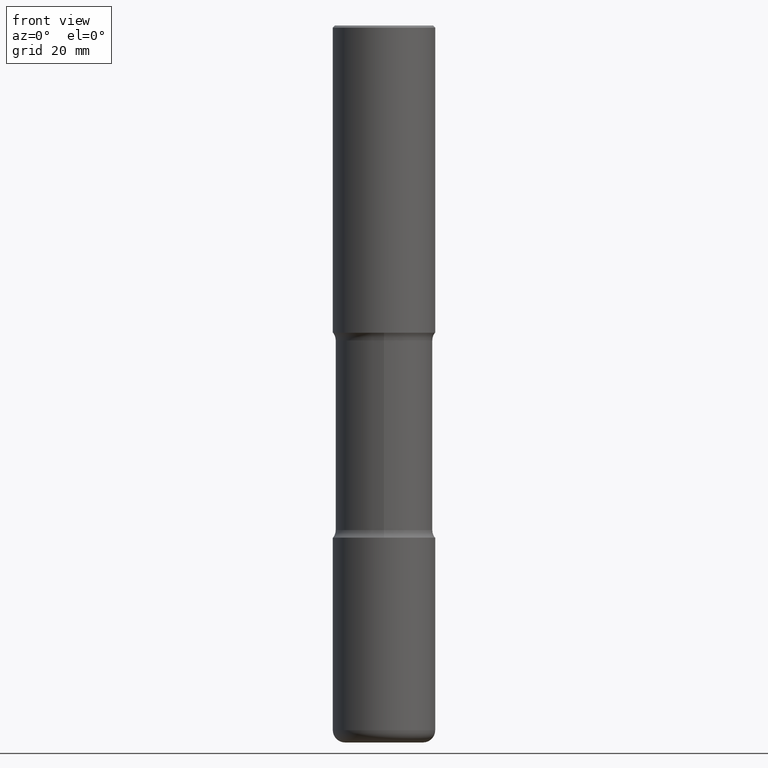
[diagram: clean part render]
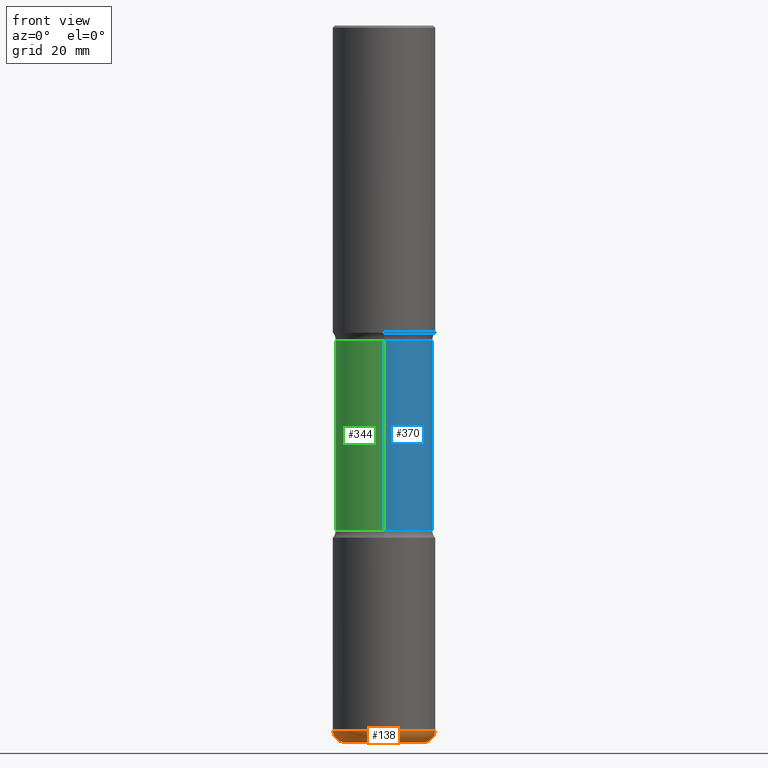
[diagram: same view with three faces highlighted in distinct colors, each labeled with its STEP entity id]
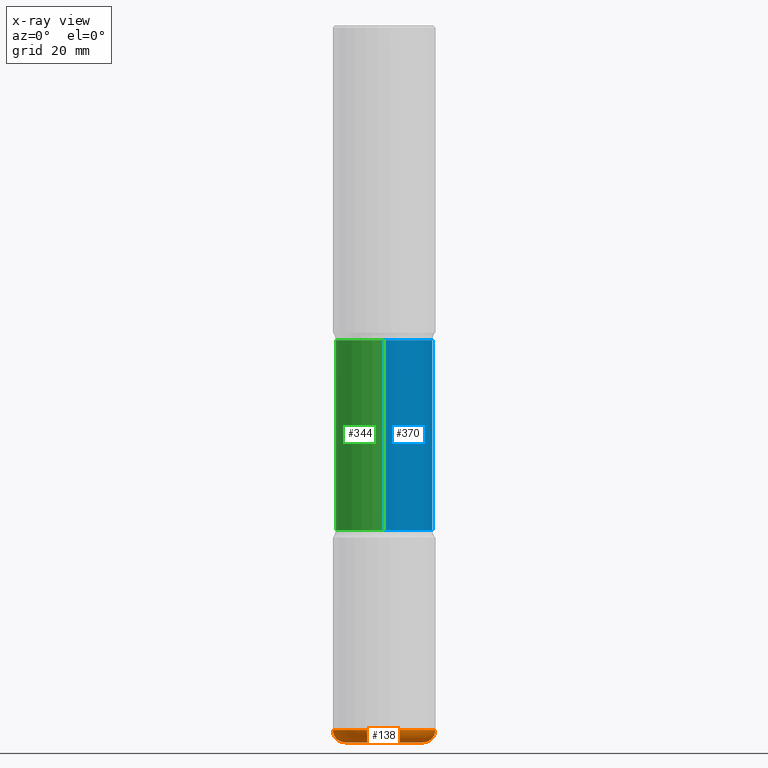
[diagram: x-ray of the same camera — body ghosted, the three highlighted faces saturated]
A machine part, front view with three faces highlighted in distinct colors.
The next image is the same camera in x-ray (body ghosted, the three faces saturated) — at least one of them is partly hidden behind the body in this view.
Their STEP definitions:

[orange] entity #138 — the highlighted toroidal blend (fillet) surface has major radius 9.652 mm and minor (blend) radius 3.048 mm.
#10 = VERTEX_POINT ( 'NONE', #276 ) ;
#18 = EDGE_CURVE ( 'NONE', #309, #529, #423, .T. ) ;
#44 = DIRECTION ( 'NONE',  ( -2.445468806185136597E-29, 3.491481338843145583E-15, 1.000000000000000000 ) ) ;
#54 = FACE_OUTER_BOUND ( 'NONE', #251, .T. ) ;
#63 = CIRCLE ( 'NONE', #229, 0.1199999999999999539 ) ;
#81 = ORIENTED_EDGE ( 'NONE', *, *, #355, .T. ) ;
#84 = DIRECTION ( 'NONE',  ( -1.000000000000000000, 7.105427357600993970E-15, 0.000000000000000000 ) ) ;
#108 = DIRECTION ( 'NONE',  ( 1.000000000000000000, -6.982962677686263555E-15, 0.000000000000000000 ) ) ;
#112 = CARTESIAN_POINT ( 'NONE',  ( -0.3800000000000004485, -2.132132921535246210E-14, -6.880000000000000782 ) ) ;
#128 = DIRECTION ( 'NONE',  ( 1.000000000000000000, -6.982962677686264344E-15, 0.000000000000000000 ) ) ;
#138 = ADVANCED_FACE ( 'NONE', ( #54 ), #385, .T. ) ;
#139 = DIRECTION ( 'NONE',  ( -2.445468806185136597E-29, 3.491481338843145583E-15, 1.000000000000000000 ) ) ;
#146 = CIRCLE ( 'NONE', #487, 0.3800000000000004485 ) ;
#159 = CARTESIAN_POINT ( 'NONE',  ( 1.711828164329595618E-28, -2.444036937190202184E-14, -7.000000000000000888 ) ) ;
#164 = AXIS2_PLACEMENT_3D ( 'NONE', #476, #44, #128 ) ;
#200 = CARTESIAN_POINT ( 'NONE',  ( 0.5000000000000004441, -2.751287295008398172E-14, -6.880000000000000782 ) ) ;
#221 = DIRECTION ( 'NONE',  ( 7.105427357601001859E-15, 1.000000000000000000, -3.491481338843145583E-15 ) ) ;
#229 = AXIS2_PLACEMENT_3D ( 'NONE', #266, #261, #432 ) ;
#235 = CARTESIAN_POINT ( 'NONE',  ( 1.682482538655374212E-28, -2.402139161124084521E-14, -6.880000000000000782 ) ) ;
#239 = DIRECTION ( 'NONE',  ( 1.000000000000000000, -6.982962677686265133E-15, 4.883557194083111780E-29 ) ) ;
#251 = EDGE_LOOP ( 'NONE', ( #413, #400, #81, #534 ) ) ;
#261 = DIRECTION ( 'NONE',  ( -6.982962677686266711E-15, -1.000000000000000000, 3.491481338843145583E-15 ) ) ;
#266 = CARTESIAN_POINT ( 'NONE',  ( 0.3800000000000004485, -2.667491742876162845E-14, -6.880000000000000782 ) ) ;
#276 = CARTESIAN_POINT ( 'NONE',  ( 0.3800000000000004485, -2.709389518942280508E-14, -7.000000000000000888 ) ) ;
#309 = VERTEX_POINT ( 'NONE', #490 ) ;
#340 = EDGE_CURVE ( 'NONE', #537, #309, #428, .T. ) ;
#355 = EDGE_CURVE ( 'NONE', #10, #529, #63, .T. ) ;
#378 = CARTESIAN_POINT ( 'NONE',  ( -0.3800000000000004485, -2.110449245422699151E-14, -7.000000000000000888 ) ) ;
#385 = TOROIDAL_SURFACE ( 'NONE', #407, 0.3800000000000004485, 0.1199999999999999123 ) ;
#398 = AXIS2_PLACEMENT_3D ( 'NONE', #112, #221, #84 ) ;
#400 = ORIENTED_EDGE ( 'NONE', *, *, #515, .T. ) ;
#407 = AXIS2_PLACEMENT_3D ( 'NONE', #235, #139, #239 ) ;
#413 = ORIENTED_EDGE ( 'NONE', *, *, #340, .F. ) ;
#423 = CIRCLE ( 'NONE', #164, 0.5000000000000004441 ) ;
#428 = CIRCLE ( 'NONE', #398, 0.1199999999999999539 ) ;
#432 = DIRECTION ( 'NONE',  ( 1.000000000000000000, -6.982962677686270655E-15, 0.000000000000000000 ) ) ;
#476 = CARTESIAN_POINT ( 'NONE',  ( 1.682482538655374212E-28, -2.402139161124084521E-14, -6.880000000000000782 ) ) ;
#487 = AXIS2_PLACEMENT_3D ( 'NONE', #159, #507, #108 ) ;
#490 = CARTESIAN_POINT ( 'NONE',  ( -0.5000000000000004441, -2.046867793244034428E-14, -6.880000000000000782 ) ) ;
#507 = DIRECTION ( 'NONE',  ( -2.445468806185136597E-29, 3.491481338843145583E-15, 1.000000000000000000 ) ) ;
#515 = EDGE_CURVE ( 'NONE', #537, #10, #146, .T. ) ;
#529 = VERTEX_POINT ( 'NONE', #200 ) ;
#534 = ORIENTED_EDGE ( 'NONE', *, *, #18, .F. ) ;
#537 = VERTEX_POINT ( 'NONE', #378 ) ;

[blue] entity #370 — the highlighted cylindrical surface (partial cylindrical patch) has radius 12.065 mm, axis along (0, -0, -1).
#1 = CARTESIAN_POINT ( 'NONE',  ( 1.204017111178237438E-28, -1.720093407839433761E-14, -4.924999999999998046 ) ) ;
#2 = VERTEX_POINT ( 'NONE', #493 ) ;
#6 = VERTEX_POINT ( 'NONE', #367 ) ;
#11 = DIRECTION ( 'NONE',  ( 6.982962677686265133E-15, 1.000000000000000000, -3.450755360418015555E-15 ) ) ;
#23 = EDGE_CURVE ( 'NONE', #6, #129, #75, .T. ) ;
#25 = FACE_OUTER_BOUND ( 'NONE', #552, .T. ) ;
#36 = DIRECTION ( 'NONE',  ( 6.982962677686265922E-15, 1.000000000000000000, -2.300503573612011028E-15 ) ) ;
#46 = LINE ( 'NONE', #494, #69 ) ;
#55 = ORIENTED_EDGE ( 'NONE', *, *, #332, .T. ) ;
#60 = CARTESIAN_POINT ( 'NONE',  ( -3.344492773913500625E-15, -0.4750000000000171863, -4.924999999999997158 ) ) ;
#69 = VECTOR ( 'NONE', #102, 39.37007874015748143 ) ;
#75 = CIRCLE ( 'NONE', #521, 0.4749999999999999778 ) ;
#102 = DIRECTION ( 'NONE',  ( 2.495638921910708014E-29, -3.419634877618474112E-15, -1.000000000000000000 ) ) ;
#115 = EDGE_CURVE ( 'NONE', #369, #2, #396, .T. ) ;
#127 = DIRECTION ( 'NONE',  ( 2.495638921910708014E-29, -3.419634877618474112E-15, -1.000000000000000000 ) ) ;
#129 = VERTEX_POINT ( 'NONE', #60 ) ;
#167 = DIRECTION ( 'NONE',  ( 6.982962677686265133E-15, 1.000000000000000000, -2.300503573612011422E-15 ) ) ;
#180 = CARTESIAN_POINT ( 'NONE',  ( 3.316907271901051235E-15, 0.4749999999999892641, -3.075000000000001510 ) ) ;
#183 = CARTESIAN_POINT ( 'NONE',  ( -3.258736548941304889E-15, -0.4750000000000243472, -6.999999999999997335 ) ) ;
#185 = ORIENTED_EDGE ( 'NONE', *, *, #207, .F. ) ;
#186 = AXIS2_PLACEMENT_3D ( 'NONE', #360, #258, #36 ) ;
#207 = EDGE_CURVE ( 'NONE', #369, #6, #46, .T. ) ;
#215 = DIRECTION ( 'NONE',  ( 2.495638921910708014E-29, -3.419634877618474112E-15, -1.000000000000000000 ) ) ;
#225 = ORIENTED_EDGE ( 'NONE', *, *, #115, .T. ) ;
#247 = VECTOR ( 'NONE', #127, 39.37007874015748143 ) ;
#258 = DIRECTION ( 'NONE',  ( 2.495638921910708014E-29, -3.419634877618474112E-15, -1.000000000000000000 ) ) ;
#332 = EDGE_CURVE ( 'NONE', #2, #129, #446, .T. ) ;
#360 = CARTESIAN_POINT ( 'NONE',  ( 1.721862187474709565E-28, -2.429667644945267101E-14, -6.999999999999998224 ) ) ;
#367 = CARTESIAN_POINT ( 'NONE',  ( 3.316907271901096594E-15, 0.4749999999999827693, -4.924999999999999822 ) ) ;
#369 = VERTEX_POINT ( 'NONE', #180 ) ;
#370 = ADVANCED_FACE ( 'NONE', ( #25 ), #450, .T. ) ;
#396 = CIRCLE ( 'NONE', #497, 0.4750000000000001443 ) ;
#446 = LINE ( 'NONE', #183, #247 ) ;
#450 = CYLINDRICAL_SURFACE ( 'NONE', #186, 0.4750000000000000333 ) ;
#464 = CARTESIAN_POINT ( 'NONE',  ( 7.423239106247569958E-29, -1.087460955480016368E-14, -3.074999999999999734 ) ) ;
#477 = ORIENTED_EDGE ( 'NONE', *, *, #23, .F. ) ;
#493 = CARTESIAN_POINT ( 'NONE',  ( -3.344492773913550718E-15, -0.4750000000000109690, -3.074999999999998401 ) ) ;
#494 = CARTESIAN_POINT ( 'NONE',  ( 3.316907271901148659E-15, 0.4749999999999757194, -7.000000000000000000 ) ) ;
#497 = AXIS2_PLACEMENT_3D ( 'NONE', #464, #541, #11 ) ;
#521 = AXIS2_PLACEMENT_3D ( 'NONE', #1, #215, #167 ) ;
#541 = DIRECTION ( 'NONE',  ( 2.495638921910708014E-29, -3.419634877618474112E-15, -1.000000000000000000 ) ) ;
#552 = EDGE_LOOP ( 'NONE', ( #225, #55, #477, #185 ) ) ;

[green] entity #344 — the highlighted cylindrical surface (partial cylindrical patch) has radius 12.065 mm, axis along (0, -0, -1).
#2 = VERTEX_POINT ( 'NONE', #493 ) ;
#6 = VERTEX_POINT ( 'NONE', #367 ) ;
#22 = AXIS2_PLACEMENT_3D ( 'NONE', #298, #475, #70 ) ;
#42 = CYLINDRICAL_SURFACE ( 'NONE', #22, 0.4750000000000000333 ) ;
#46 = LINE ( 'NONE', #494, #69 ) ;
#53 = AXIS2_PLACEMENT_3D ( 'NONE', #226, #281, #406 ) ;
#60 = CARTESIAN_POINT ( 'NONE',  ( -3.344492773913500625E-15, -0.4750000000000171863, -4.924999999999997158 ) ) ;
#69 = VECTOR ( 'NONE', #102, 39.37007874015748143 ) ;
#70 = DIRECTION ( 'NONE',  ( 6.982962677686265922E-15, 1.000000000000000000, -2.300503573612011028E-15 ) ) ;
#89 = DIRECTION ( 'NONE',  ( 2.495638921910708014E-29, -3.419634877618474112E-15, -1.000000000000000000 ) ) ;
#102 = DIRECTION ( 'NONE',  ( 2.495638921910708014E-29, -3.419634877618474112E-15, -1.000000000000000000 ) ) ;
#127 = DIRECTION ( 'NONE',  ( 2.495638921910708014E-29, -3.419634877618474112E-15, -1.000000000000000000 ) ) ;
#129 = VERTEX_POINT ( 'NONE', #60 ) ;
#180 = CARTESIAN_POINT ( 'NONE',  ( 3.316907271901051235E-15, 0.4749999999999892641, -3.075000000000001510 ) ) ;
#183 = CARTESIAN_POINT ( 'NONE',  ( -3.258736548941304889E-15, -0.4750000000000243472, -6.999999999999997335 ) ) ;
#204 = DIRECTION ( 'NONE',  ( 6.982962677686265133E-15, 1.000000000000000000, -2.300503573612011422E-15 ) ) ;
#207 = EDGE_CURVE ( 'NONE', #369, #6, #46, .T. ) ;
#226 = CARTESIAN_POINT ( 'NONE',  ( 7.423239106247569958E-29, -1.087460955480016368E-14, -3.074999999999999734 ) ) ;
#236 = ORIENTED_EDGE ( 'NONE', *, *, #207, .T. ) ;
#247 = VECTOR ( 'NONE', #127, 39.37007874015748143 ) ;
#249 = EDGE_CURVE ( 'NONE', #2, #369, #551, .T. ) ;
#250 = CARTESIAN_POINT ( 'NONE',  ( 1.204017111178237438E-28, -1.720093407839433761E-14, -4.924999999999998046 ) ) ;
#281 = DIRECTION ( 'NONE',  ( 2.495638921910708014E-29, -3.419634877618474112E-15, -1.000000000000000000 ) ) ;
#296 = FACE_OUTER_BOUND ( 'NONE', #442, .T. ) ;
#298 = CARTESIAN_POINT ( 'NONE',  ( 1.721862187474709565E-28, -2.429667644945267101E-14, -6.999999999999998224 ) ) ;
#317 = ORIENTED_EDGE ( 'NONE', *, *, #345, .F. ) ;
#332 = EDGE_CURVE ( 'NONE', #2, #129, #446, .T. ) ;
#344 = ADVANCED_FACE ( 'NONE', ( #296 ), #42, .T. ) ;
#345 = EDGE_CURVE ( 'NONE', #129, #6, #363, .T. ) ;
#363 = CIRCLE ( 'NONE', #424, 0.4749999999999999778 ) ;
#367 = CARTESIAN_POINT ( 'NONE',  ( 3.316907271901096594E-15, 0.4749999999999827693, -4.924999999999999822 ) ) ;
#369 = VERTEX_POINT ( 'NONE', #180 ) ;
#406 = DIRECTION ( 'NONE',  ( 6.982962677686265133E-15, 1.000000000000000000, -3.450755360418015555E-15 ) ) ;
#417 = ORIENTED_EDGE ( 'NONE', *, *, #249, .T. ) ;
#424 = AXIS2_PLACEMENT_3D ( 'NONE', #250, #89, #204 ) ;
#442 = EDGE_LOOP ( 'NONE', ( #519, #417, #236, #317 ) ) ;
#446 = LINE ( 'NONE', #183, #247 ) ;
#475 = DIRECTION ( 'NONE',  ( 2.495638921910708014E-29, -3.419634877618474112E-15, -1.000000000000000000 ) ) ;
#493 = CARTESIAN_POINT ( 'NONE',  ( -3.344492773913550718E-15, -0.4750000000000109690, -3.074999999999998401 ) ) ;
#494 = CARTESIAN_POINT ( 'NONE',  ( 3.316907271901148659E-15, 0.4749999999999757194, -7.000000000000000000 ) ) ;
#519 = ORIENTED_EDGE ( 'NONE', *, *, #332, .F. ) ;
#551 = CIRCLE ( 'NONE', #53, 0.4750000000000001443 ) ;